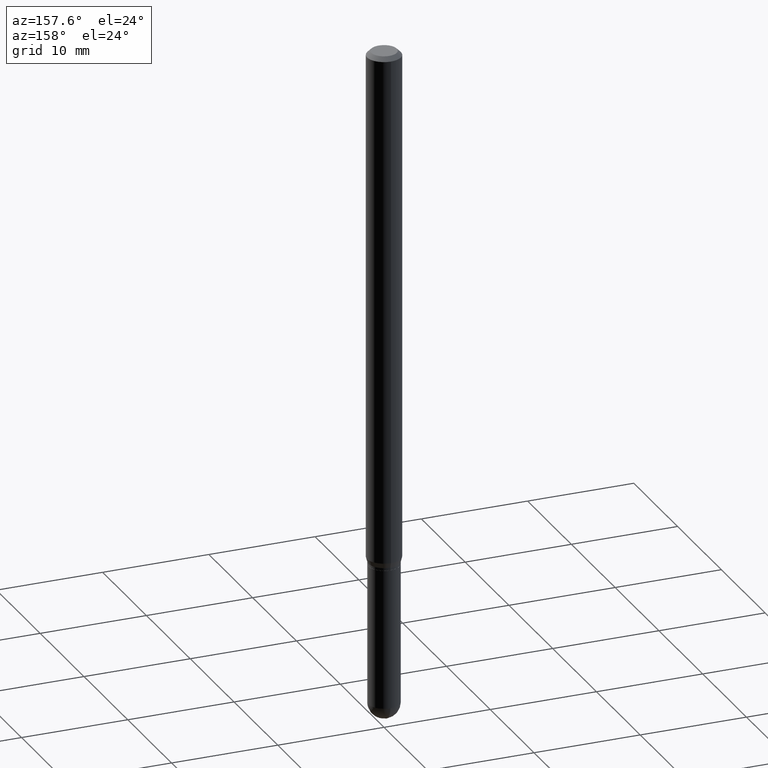
[diagram: clean part render]
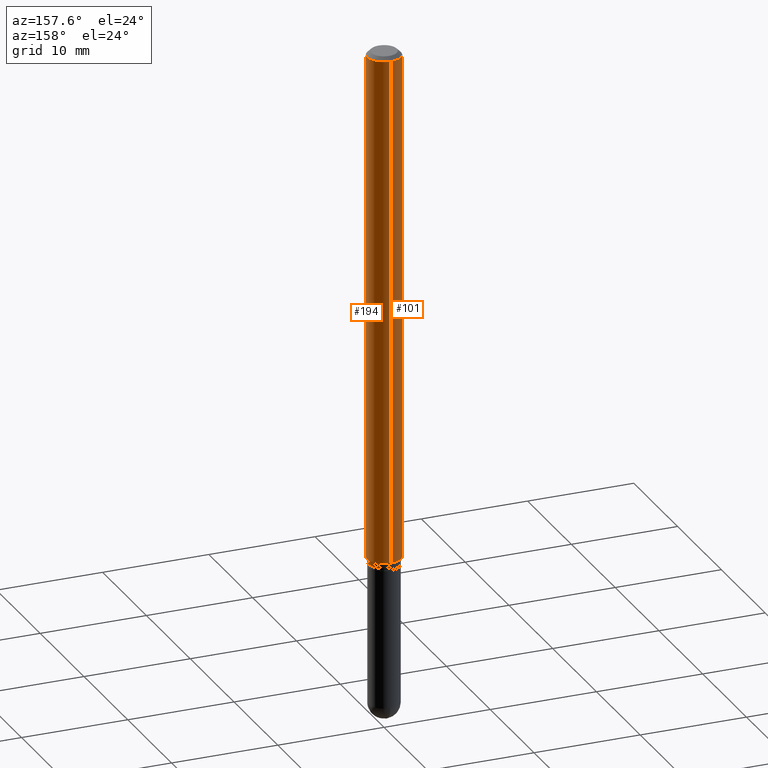
[diagram: same view with one multi-face feature highlighted, each face labeled with its STEP entity id]
A machine part, auxiliary view. The highlighted faces form ONE feature: a constant-radius fillet chain: 2 tangent blend faces with common blend radius 1.5875 mm. The faces share edges in the B-rep.
Their STEP definitions:
[1] entity #101 (Cylinder):
#20 = VERTEX_POINT ( 'NONE', #456 ) ;
#21 = EDGE_CURVE ( 'NONE', #20, #91, #169, .T. ) ;
#28 = CARTESIAN_POINT ( 'NONE',  ( 4.440892098501090604E-16, 0.06249999999999340111, -1.896339745962153822 ) ) ;
#43 = DIRECTION ( 'NONE',  ( -6.982962677686265922E-15, -1.000000000000000000, 3.483106191921935554E-15 ) ) ;
#53 = ORIENTED_EDGE ( 'NONE', *, *, #379, .T. ) ;
#59 = EDGE_CURVE ( 'NONE', #200, #91, #146, .T. ) ;
#84 = DIRECTION ( 'NONE',  ( -2.445563695003762350E-29, 3.491345452654137360E-15, 1.000000000000000000 ) ) ;
#85 = CYLINDRICAL_SURFACE ( 'NONE', #217, 0.06250000000000000000 ) ;
#91 = VERTEX_POINT ( 'NONE', #467 ) ;
#94 = LINE ( 'NONE', #318, #508 ) ;
#101 = ADVANCED_FACE ( 'NONE', ( #263 ), #85, .T. ) ;
#112 = DIRECTION ( 'NONE',  ( -2.445563695003762069E-29, 3.491345452654137754E-15, 1.000000000000000000 ) ) ;
#114 = DIRECTION ( 'NONE',  ( -6.982962677686265922E-15, -1.000000000000000000, 3.491345452654138149E-15 ) ) ;
#119 = ORIENTED_EDGE ( 'NONE', *, *, #142, .F. ) ;
#142 = EDGE_CURVE ( 'NONE', #328, #20, #94, .T. ) ;
#146 = LINE ( 'NONE', #312, #489 ) ;
#166 = DIRECTION ( 'NONE',  ( -2.445563695003762350E-29, 3.491345452654137360E-15, 1.000000000000000000 ) ) ;
#169 = CIRCLE ( 'NONE', #250, 0.06250000000000000000 ) ;
#184 = CARTESIAN_POINT ( 'NONE',  ( 4.637619636117699599E-29, -6.620777148752266590E-15, -1.896339745962153600 ) ) ;
#200 = VERTEX_POINT ( 'NONE', #244 ) ;
#202 = ORIENTED_EDGE ( 'NONE', *, *, #59, .T. ) ;
#217 = AXIS2_PLACEMENT_3D ( 'NONE', #266, #301, #114 ) ;
#244 = CARTESIAN_POINT ( 'NONE',  ( -4.364351673553450773E-16, -0.06250000000000659195, -1.896339745962153378 ) ) ;
#250 = AXIS2_PLACEMENT_3D ( 'NONE', #512, #112, #43 ) ;
#263 = FACE_OUTER_BOUND ( 'NONE', #448, .T. ) ;
#266 = CARTESIAN_POINT ( 'NONE',  ( 0.000000000000000000, 0.000000000000000000, 0.000000000000000000 ) ) ;
#279 = ORIENTED_EDGE ( 'NONE', *, *, #21, .F. ) ;
#301 = DIRECTION ( 'NONE',  ( -2.445563695003762069E-29, 3.491345452654137754E-15, 1.000000000000000000 ) ) ;
#312 = CARTESIAN_POINT ( 'NONE',  ( -4.364351673553916201E-16, -0.06250000000000000000, 2.182090907908836343E-16 ) ) ;
#318 = CARTESIAN_POINT ( 'NONE',  ( 4.440892098500625669E-16, 0.06250000000000000000, -2.182090907908836343E-16 ) ) ;
#328 = VERTEX_POINT ( 'NONE', #28 ) ;
#332 = CIRCLE ( 'NONE', #484, 0.06250000000000000000 ) ;
#336 = DIRECTION ( 'NONE',  ( -2.445563695003762069E-29, 3.491345452654137754E-15, 1.000000000000000000 ) ) ;
#379 = EDGE_CURVE ( 'NONE', #328, #200, #332, .T. ) ;
#413 = DIRECTION ( 'NONE',  ( -6.982962677686265922E-15, -1.000000000000000000, 4.370956789862821150E-15 ) ) ;
#448 = EDGE_LOOP ( 'NONE', ( #119, #53, #202, #279 ) ) ;
#456 = CARTESIAN_POINT ( 'NONE',  ( 4.440892098501092576E-16, 0.06249999999999995143, -0.01500000000000054588 ) ) ;
#467 = CARTESIAN_POINT ( 'NONE',  ( -4.364351673553912750E-16, -0.06250000000000005551, -0.01500000000000011047 ) ) ;
#484 = AXIS2_PLACEMENT_3D ( 'NONE', #184, #336, #413 ) ;
#489 = VECTOR ( 'NONE', #84, 39.37007874015748143 ) ;
#508 = VECTOR ( 'NONE', #166, 39.37007874015748143 ) ;
#512 = CARTESIAN_POINT ( 'NONE',  ( 3.668345542505723731E-31, -5.237018178981320869E-17, -0.01500000000000032904 ) ) ;
[2] entity #194 (Cylinder):
#10 = AXIS2_PLACEMENT_3D ( 'NONE', #182, #257, #293 ) ;
#11 = DIRECTION ( 'NONE',  ( -6.982962677686265922E-15, -1.000000000000000000, 3.491345452654138149E-15 ) ) ;
#20 = VERTEX_POINT ( 'NONE', #456 ) ;
#22 = AXIS2_PLACEMENT_3D ( 'NONE', #175, #366, #11 ) ;
#28 = CARTESIAN_POINT ( 'NONE',  ( 4.440892098501090604E-16, 0.06249999999999340111, -1.896339745962153822 ) ) ;
#31 = ORIENTED_EDGE ( 'NONE', *, *, #142, .T. ) ;
#59 = EDGE_CURVE ( 'NONE', #200, #91, #146, .T. ) ;
#84 = DIRECTION ( 'NONE',  ( -2.445563695003762350E-29, 3.491345452654137360E-15, 1.000000000000000000 ) ) ;
#90 = FACE_OUTER_BOUND ( 'NONE', #423, .T. ) ;
#91 = VERTEX_POINT ( 'NONE', #467 ) ;
#94 = LINE ( 'NONE', #318, #508 ) ;
#128 = CARTESIAN_POINT ( 'NONE',  ( 4.637619636117699599E-29, -6.620777148752266590E-15, -1.896339745962153600 ) ) ;
#130 = DIRECTION ( 'NONE',  ( -6.982962677686265922E-15, -1.000000000000000000, 4.370956789862821150E-15 ) ) ;
#142 = EDGE_CURVE ( 'NONE', #328, #20, #94, .T. ) ;
#146 = LINE ( 'NONE', #312, #489 ) ;
#166 = DIRECTION ( 'NONE',  ( -2.445563695003762350E-29, 3.491345452654137360E-15, 1.000000000000000000 ) ) ;
#175 = CARTESIAN_POINT ( 'NONE',  ( 0.000000000000000000, 0.000000000000000000, 0.000000000000000000 ) ) ;
#182 = CARTESIAN_POINT ( 'NONE',  ( 3.668345542505723731E-31, -5.237018178981320869E-17, -0.01500000000000032904 ) ) ;
#194 = ADVANCED_FACE ( 'NONE', ( #90 ), #362, .T. ) ;
#200 = VERTEX_POINT ( 'NONE', #244 ) ;
#226 = EDGE_CURVE ( 'NONE', #200, #328, #372, .T. ) ;
#244 = CARTESIAN_POINT ( 'NONE',  ( -4.364351673553450773E-16, -0.06250000000000659195, -1.896339745962153378 ) ) ;
#254 = DIRECTION ( 'NONE',  ( -2.445563695003762069E-29, 3.491345452654137754E-15, 1.000000000000000000 ) ) ;
#257 = DIRECTION ( 'NONE',  ( -2.445563695003762069E-29, 3.491345452654137754E-15, 1.000000000000000000 ) ) ;
#291 = CIRCLE ( 'NONE', #10, 0.06250000000000000000 ) ;
#293 = DIRECTION ( 'NONE',  ( -6.982962677686265922E-15, -1.000000000000000000, 3.483106191921935554E-15 ) ) ;
#312 = CARTESIAN_POINT ( 'NONE',  ( -4.364351673553916201E-16, -0.06250000000000000000, 2.182090907908836343E-16 ) ) ;
#318 = CARTESIAN_POINT ( 'NONE',  ( 4.440892098500625669E-16, 0.06250000000000000000, -2.182090907908836343E-16 ) ) ;
#328 = VERTEX_POINT ( 'NONE', #28 ) ;
#352 = ORIENTED_EDGE ( 'NONE', *, *, #59, .F. ) ;
#357 = ORIENTED_EDGE ( 'NONE', *, *, #470, .F. ) ;
#362 = CYLINDRICAL_SURFACE ( 'NONE', #22, 0.06250000000000000000 ) ;
#366 = DIRECTION ( 'NONE',  ( -2.445563695003762069E-29, 3.491345452654137754E-15, 1.000000000000000000 ) ) ;
#372 = CIRCLE ( 'NONE', #443, 0.06250000000000000000 ) ;
#415 = ORIENTED_EDGE ( 'NONE', *, *, #226, .T. ) ;
#423 = EDGE_LOOP ( 'NONE', ( #415, #31, #357, #352 ) ) ;
#443 = AXIS2_PLACEMENT_3D ( 'NONE', #128, #254, #130 ) ;
#456 = CARTESIAN_POINT ( 'NONE',  ( 4.440892098501092576E-16, 0.06249999999999995143, -0.01500000000000054588 ) ) ;
#467 = CARTESIAN_POINT ( 'NONE',  ( -4.364351673553912750E-16, -0.06250000000000005551, -0.01500000000000011047 ) ) ;
#470 = EDGE_CURVE ( 'NONE', #91, #20, #291, .T. ) ;
#489 = VECTOR ( 'NONE', #84, 39.37007874015748143 ) ;
#508 = VECTOR ( 'NONE', #166, 39.37007874015748143 ) ;